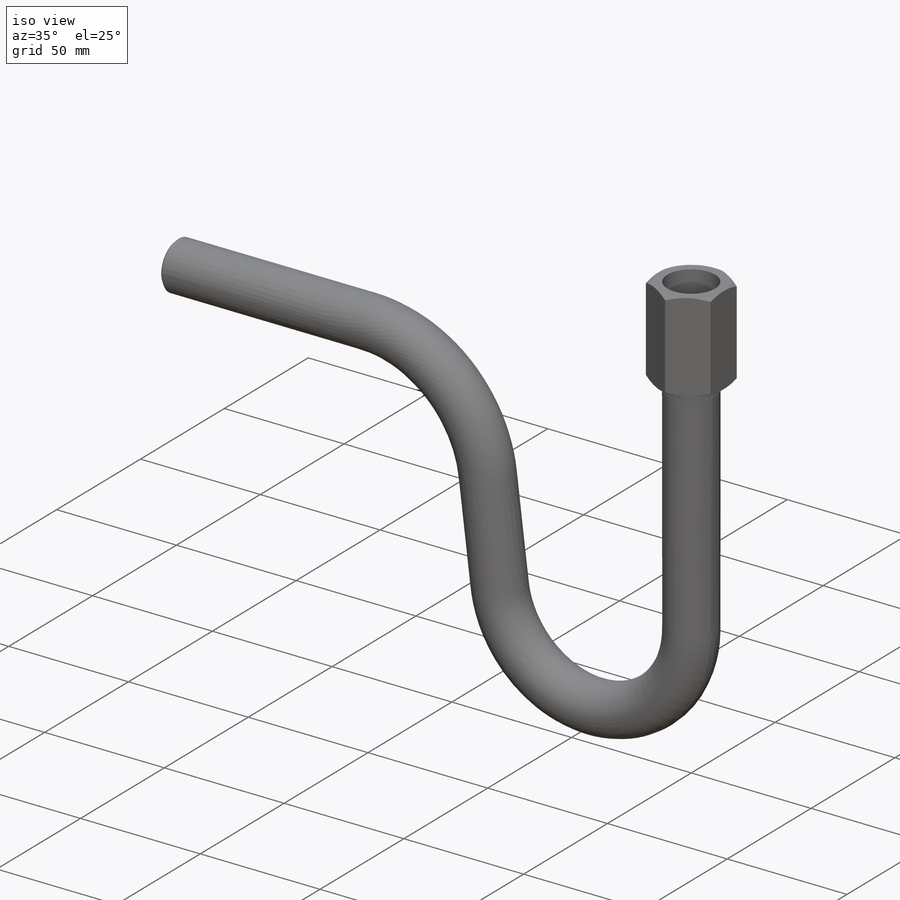
[diagram: iso view]
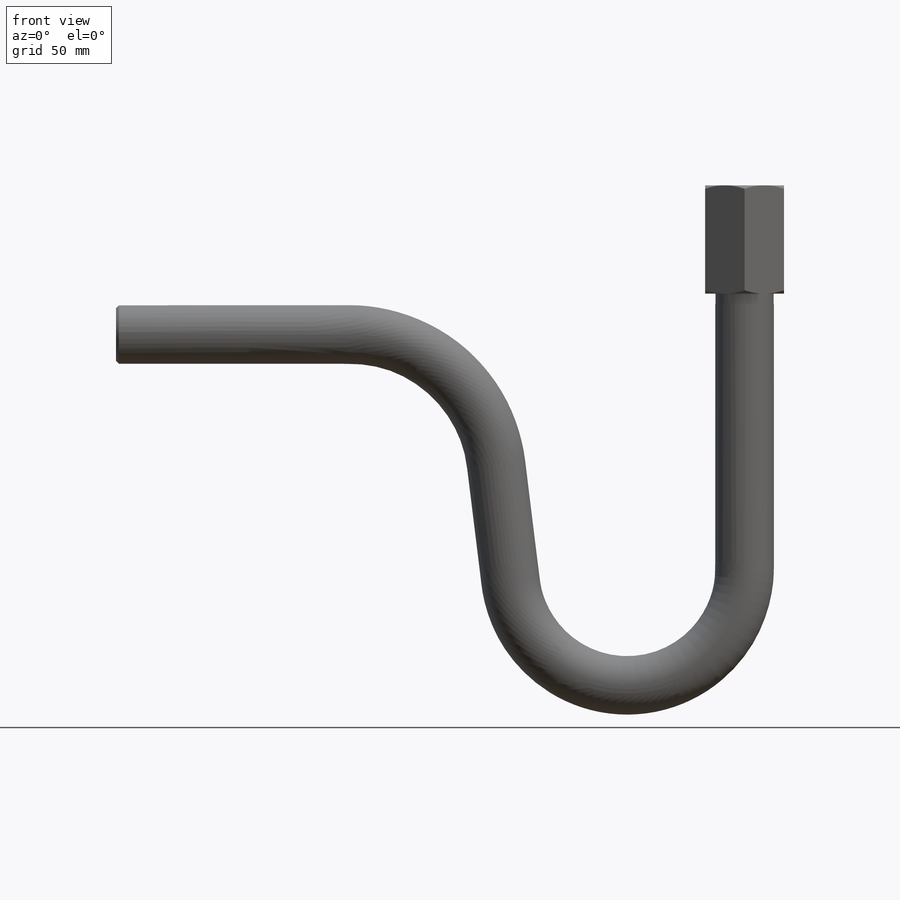
[diagram: front view]
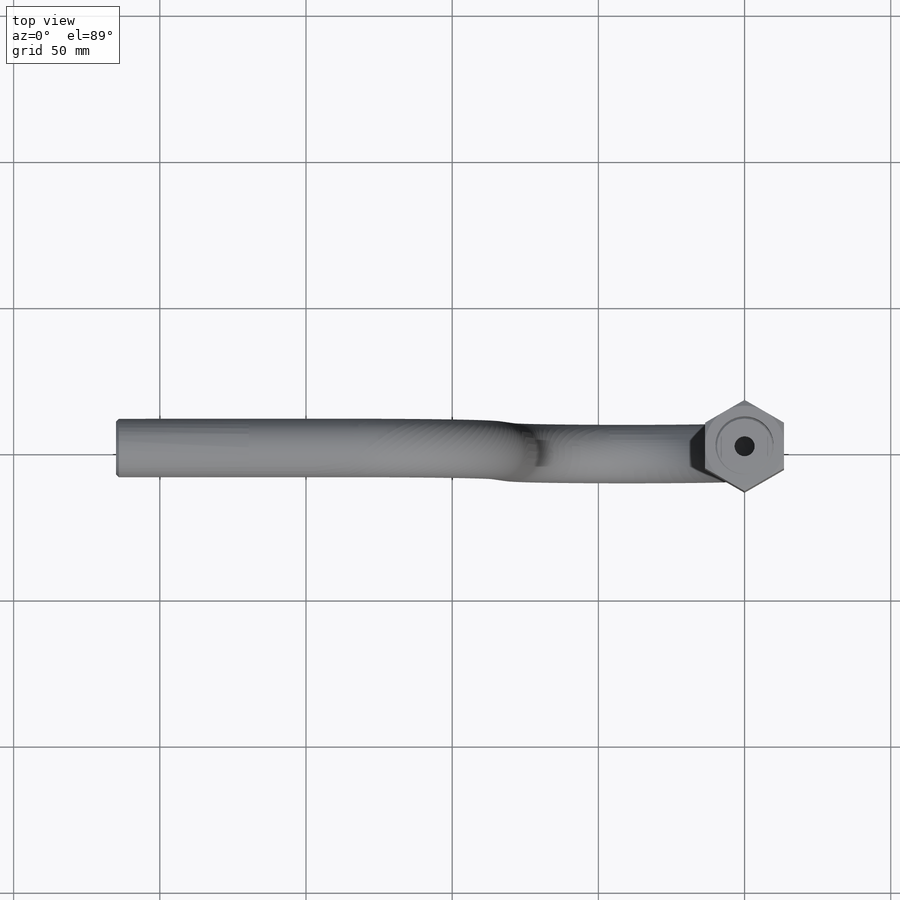
[diagram: top view]
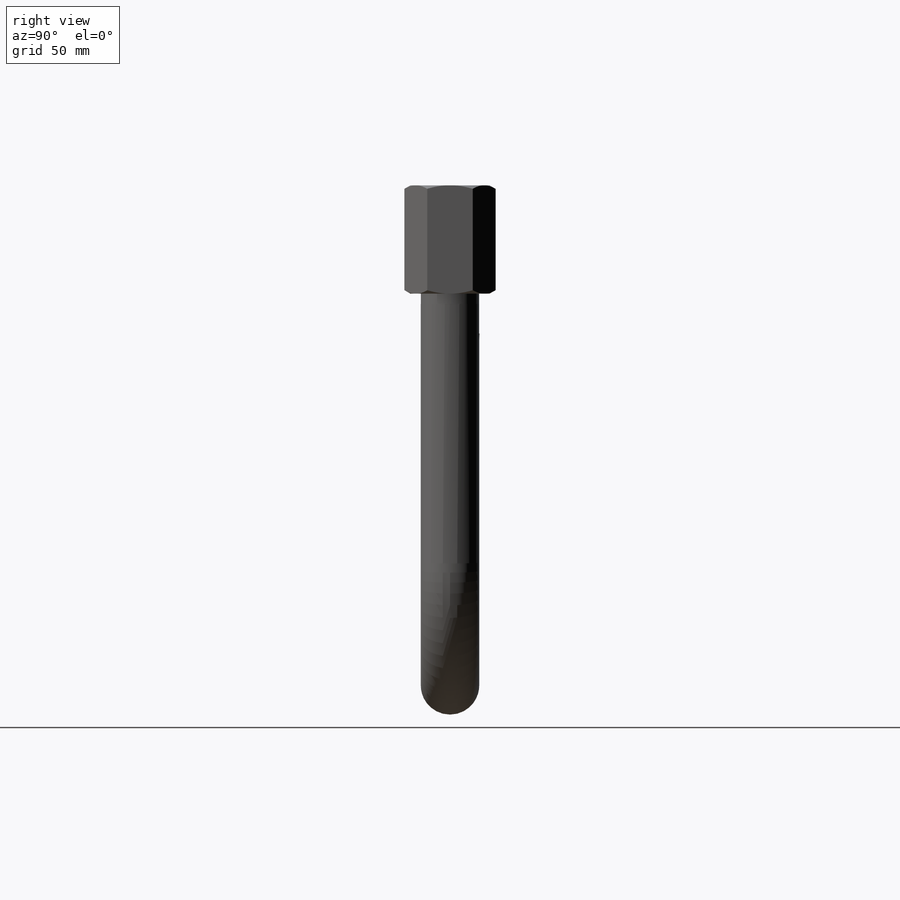
[diagram: right view]
SOLIDWORKS PART (.sldprt)
format: sldprt  version: not decoded by parser v0  size: 369,664 bytes
history: native  units: mm
features: sketch x6, plane x3, cut_extrude x2, chamfer x2, material x1, sweep x1, extrude x1, revolve x1 (+8 scaffold rows collapsed)
feature tree (25):
  scaffold x8  (default folders/planes/origin — collapsed)
  material  "Materiál <není určen>"
  plane  "Přední rovina"
  plane  "Horní rovina"
  plane  "Pravá rovina"
  sketch  "Skica1"  dims[D1=20.0mm D2=15.0mm]
  sketch  "Skica2"  dims[c1.D6=~40.093766mm c1.D1=80.0mm c1.D2=155.0mm c1.D3=120.0mm c1.D4=215.0mm c1.D5=5.0mm c2.D6=80.0mm]
  sweep  "Táhnout po křivce1"
  sketch  "Skica3"  dims[D1=19.9mm]
  cut_extrude  "Odebrat vysunutím1"  Depth=24.5mm
  chamfer  "Zkosení1"  Distance=0.5mm Angle=45deg
  chamfer  "Zkosení2"  Distance=1mm Angle=45deg
  sketch  "Skica4"  dims[D1=6.9mm D2=1.0mm]
  extrude  "Přidat vysunutím1"  Depth=12mm
  sketch  "Skica5"  dims[c1.D1=~15.951115mm c2.D1=90.0deg c3.D1=31.18mm c3.D2=37.0mm c3.D3=16.0mm c3.D4=2.0mm c3.D5=30.0deg c3.D6=2.0mm c3.D7=30.0deg]
  revolve  "Rotovat1"  Angle=360deg
  sketch  "Skica6"  dims[D1=27.0mm D2=~31.176915mm]
  cut_extrude  "Odebrat vysunutím2"  [1 undecoded]
decode coverage: 11 of 13 modeling features carry decoded parameters
note: ~ marks probable driven/reference dimensions
note: 1 parameter value undecoded
note: suppression state not decoded; provenance and decode notes live in map.json
